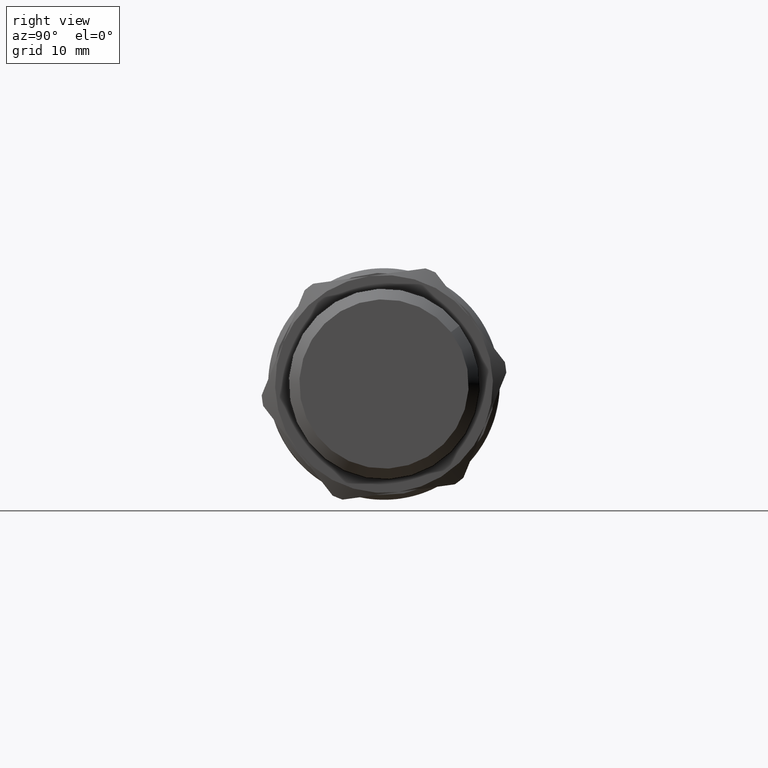
[diagram: clean part render]
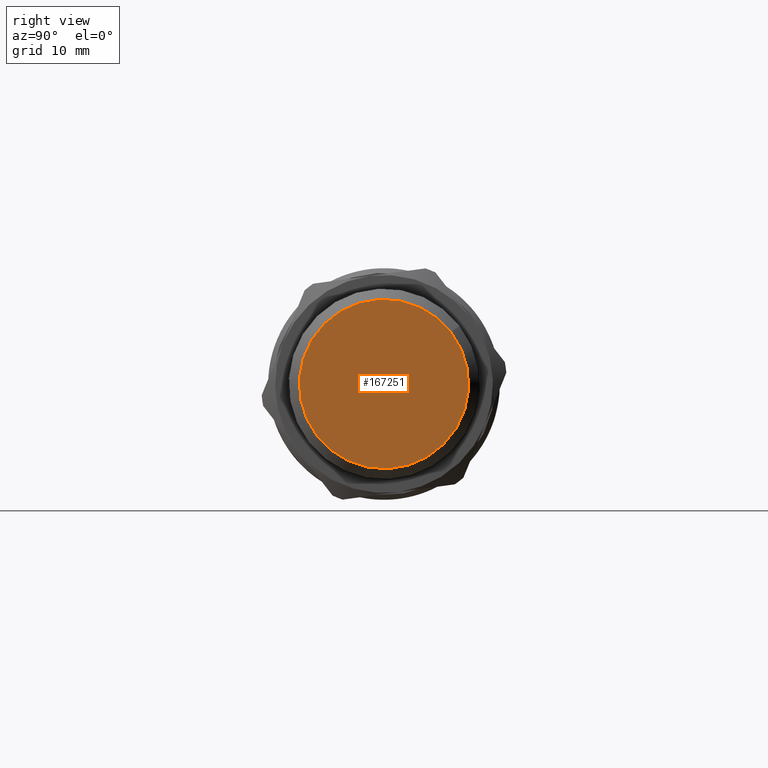
[diagram: same view with one face highlighted and labeled with its STEP entity id]
A machine part, right view. The second image highlights one B-rep face of the part: STEP entity #167251.
In plain terms, the highlighted planar face has unit normal (1, 0, 0).
Its self-contained STEP definition (entity closure, byte-faithful):
#167235=CARTESIAN_POINT('',(69.200000000000003,7.205943085938441,5.579858717271966));
#167236=DIRECTION('',(1.0,0.0,0.0));
#167237=DIRECTION('',(0.0,0.61224619034667,-0.790667188143019));
#167238=AXIS2_PLACEMENT_3D('',#167235,#167236,#167237);
#167239=PLANE('',#167238);
#167240=CARTESIAN_POINT('',(69.200000000000003,7.374948197404011,5.710726340458566));
#167241=VERTEX_POINT('',#167240);
#167242=CARTESIAN_POINT('',(69.200000000000003,3.754157E-030,1.725633E-030));
#167243=DIRECTION('',(-1.0,-1.790838E-017,-1.386720E-017));
#167244=DIRECTION('',(2.264971E-017,-0.790667188143019,-0.61224619034667));
#167245=AXIS2_PLACEMENT_3D('',#167242,#167243,#167244);
#167246=CIRCLE('',#167245,9.327499999999995);
#167247=EDGE_CURVE('',#167241,#167241,#167246,.T.);
#167248=ORIENTED_EDGE('',*,*,#167247,.F.);
#167249=EDGE_LOOP('',(#167248));
#167250=FACE_OUTER_BOUND('',#167249,.T.);
#167251=ADVANCED_FACE('',(#167250),#167239,.T.);